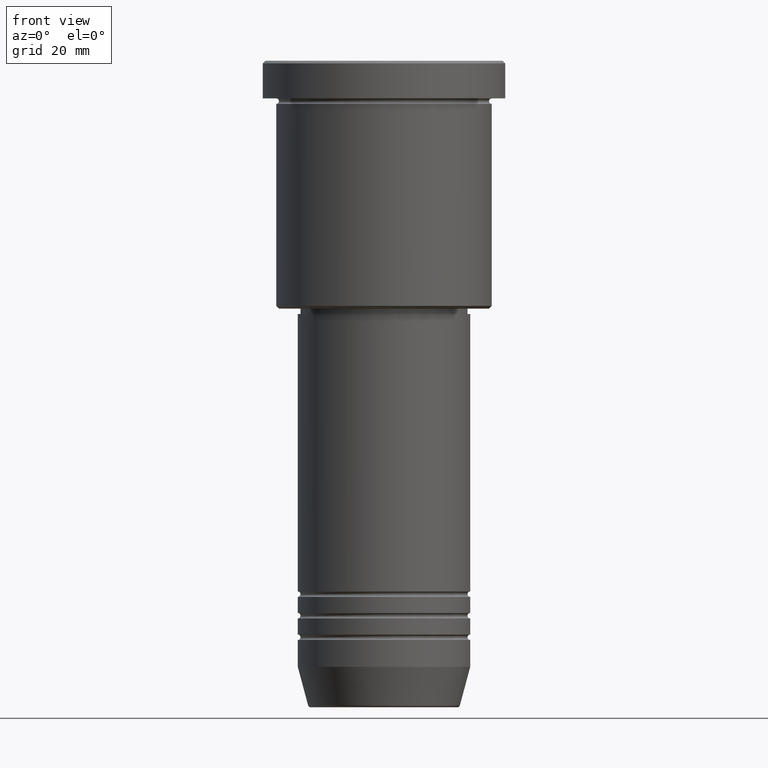
[diagram: clean part render]
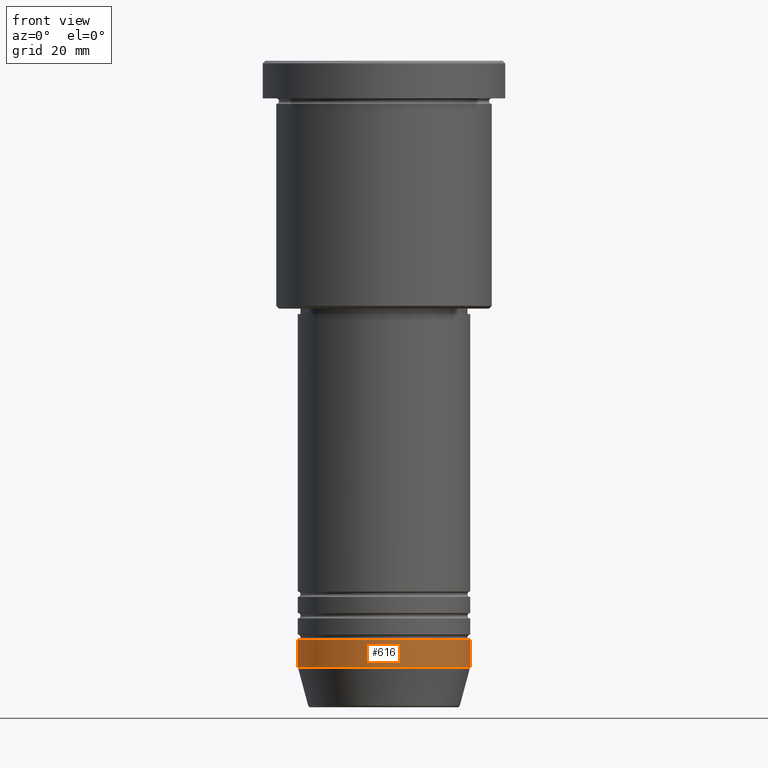
[diagram: same view with one face highlighted and labeled with its STEP entity id]
A machine part, front view. The second image highlights one B-rep face of the part: STEP entity #616.
In plain terms, the highlighted cylindrical surface (partial cylindrical patch) has radius 16 mm, axis along (-0, -0, 1).
Its self-contained STEP definition (entity closure, byte-faithful):
#17 = FACE_OUTER_BOUND ( 'NONE', #629, .T. ) ;
#45 = EDGE_CURVE ( 'NONE', #1164, #356, #834, .T. ) ;
#50 = CARTESIAN_POINT ( 'NONE',  ( 16.00000000000000000, 0.000000000000000000, -107.4999999999999858 ) ) ;
#63 = ORIENTED_EDGE ( 'NONE', *, *, #45, .F. ) ;
#93 = EDGE_CURVE ( 'NONE', #641, #264, #283, .T. ) ;
#166 = ORIENTED_EDGE ( 'NONE', *, *, #1118, .F. ) ;
#177 = VECTOR ( 'NONE', #501, 1000.000000000000000 ) ;
#202 = CARTESIAN_POINT ( 'NONE',  ( 0.000000000000000000, 0.000000000000000000, -107.4999999999999858 ) ) ;
#212 = CARTESIAN_POINT ( 'NONE',  ( 0.000000000000000000, 0.000000000000000000, 0.000000000000000000 ) ) ;
#249 = AXIS2_PLACEMENT_3D ( 'NONE', #202, #1101, #645 ) ;
#264 = VERTEX_POINT ( 'NONE', #660 ) ;
#283 = CIRCLE ( 'NONE', #316, 16.00000000000000000 ) ;
#309 = DIRECTION ( 'NONE',  ( 1.000000000000000000, 0.000000000000000000, 0.000000000000000000 ) ) ;
#316 = AXIS2_PLACEMENT_3D ( 'NONE', #1025, #573, #483 ) ;
#318 = LINE ( 'NONE', #775, #177 ) ;
#356 = VERTEX_POINT ( 'NONE', #50 ) ;
#416 = ORIENTED_EDGE ( 'NONE', *, *, #626, .T. ) ;
#483 = DIRECTION ( 'NONE',  ( 1.000000000000000000, 0.000000000000000000, 0.000000000000000000 ) ) ;
#501 = DIRECTION ( 'NONE',  ( -0.000000000000000000, -0.000000000000000000, 1.000000000000000000 ) ) ;
#523 = CARTESIAN_POINT ( 'NONE',  ( -16.00000000000000000, 1.959434878635765131E-15, -107.4999999999999858 ) ) ;
#538 = VECTOR ( 'NONE', #611, 1000.000000000000000 ) ;
#573 = DIRECTION ( 'NONE',  ( -0.000000000000000000, -0.000000000000000000, 1.000000000000000000 ) ) ;
#611 = DIRECTION ( 'NONE',  ( -0.000000000000000000, -0.000000000000000000, 1.000000000000000000 ) ) ;
#613 = CARTESIAN_POINT ( 'NONE',  ( -16.00000000000000000, 1.959434878635765131E-15, -112.4999999999999858 ) ) ;
#616 = ADVANCED_FACE ( 'NONE', ( #17 ), #1013, .T. ) ;
#624 = CARTESIAN_POINT ( 'NONE',  ( -16.00000000000000000, 1.959434878635765131E-15, 0.000000000000000000 ) ) ;
#626 = EDGE_CURVE ( 'NONE', #264, #356, #318, .T. ) ;
#629 = EDGE_LOOP ( 'NONE', ( #166, #1119, #416, #63 ) ) ;
#641 = VERTEX_POINT ( 'NONE', #613 ) ;
#645 = DIRECTION ( 'NONE',  ( 1.000000000000000000, 0.000000000000000000, 0.000000000000000000 ) ) ;
#660 = CARTESIAN_POINT ( 'NONE',  ( 16.00000000000000000, 0.000000000000000000, -112.4999999999999858 ) ) ;
#722 = AXIS2_PLACEMENT_3D ( 'NONE', #212, #748, #309 ) ;
#748 = DIRECTION ( 'NONE',  ( -0.000000000000000000, -0.000000000000000000, 1.000000000000000000 ) ) ;
#775 = CARTESIAN_POINT ( 'NONE',  ( 16.00000000000000000, 0.000000000000000000, 0.000000000000000000 ) ) ;
#834 = CIRCLE ( 'NONE', #249, 16.00000000000000000 ) ;
#1013 = CYLINDRICAL_SURFACE ( 'NONE', #722, 16.00000000000000000 ) ;
#1025 = CARTESIAN_POINT ( 'NONE',  ( 0.000000000000000000, 0.000000000000000000, -112.4999999999999858 ) ) ;
#1074 = LINE ( 'NONE', #624, #538 ) ;
#1101 = DIRECTION ( 'NONE',  ( -0.000000000000000000, -0.000000000000000000, 1.000000000000000000 ) ) ;
#1118 = EDGE_CURVE ( 'NONE', #641, #1164, #1074, .T. ) ;
#1119 = ORIENTED_EDGE ( 'NONE', *, *, #93, .T. ) ;
#1164 = VERTEX_POINT ( 'NONE', #523 ) ;